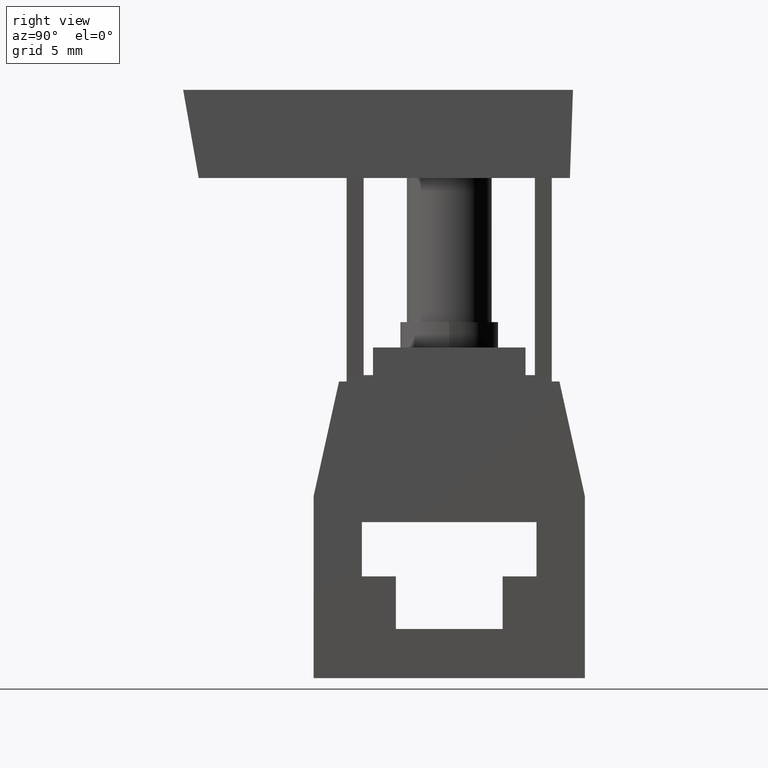
[diagram: clean part render]
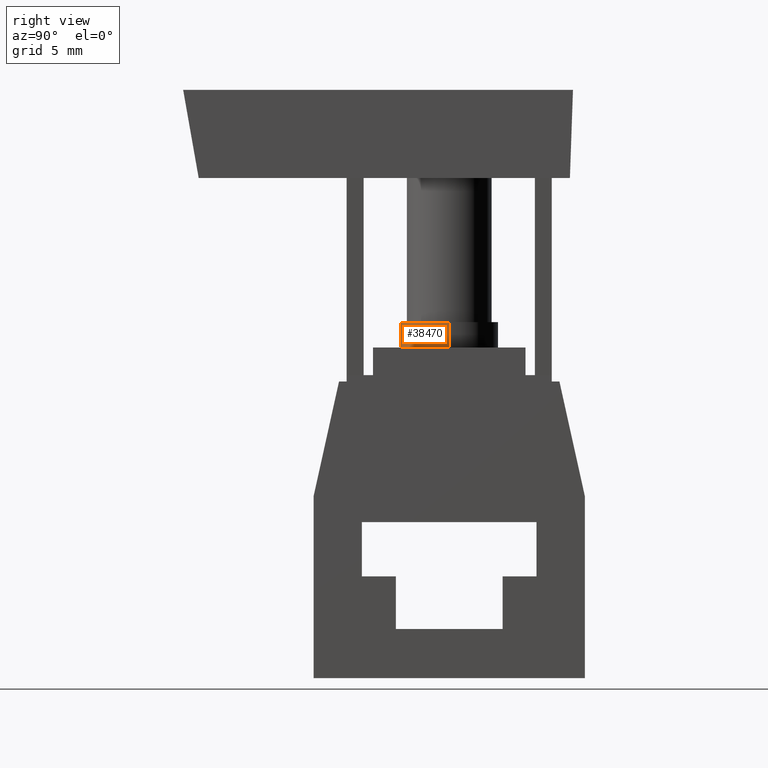
[diagram: same view with one face highlighted and labeled with its STEP entity id]
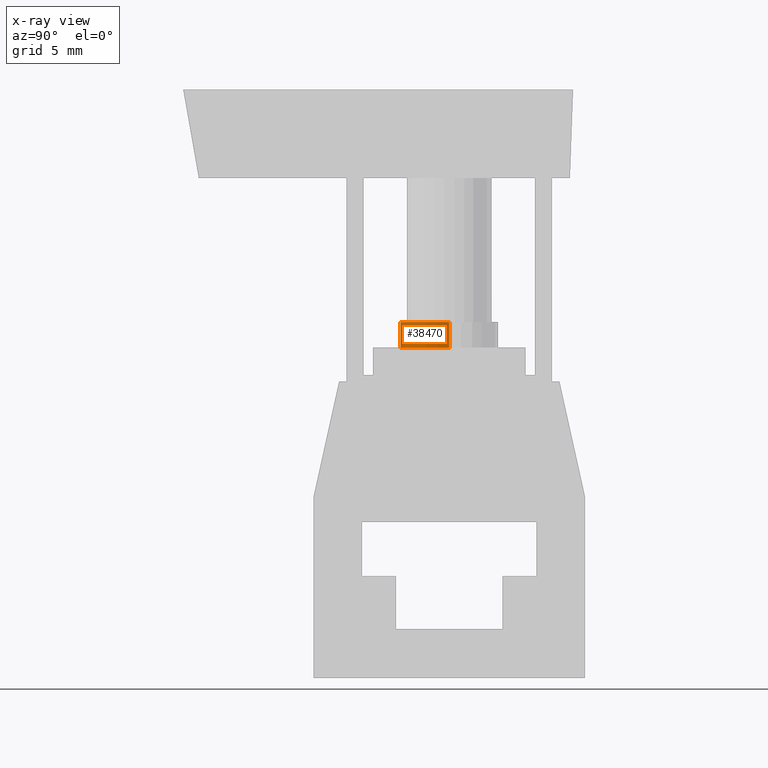
[diagram: x-ray of the same camera — body ghosted, the highlighted face saturated]
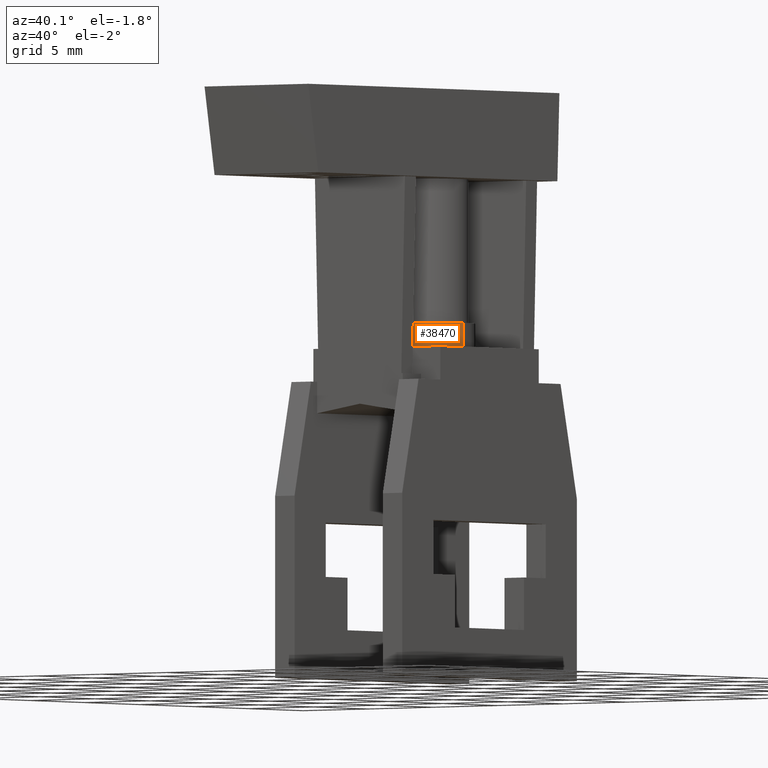
[diagram: same view with one face highlighted and labeled with its STEP entity id]
A machine part, right view. The second image highlights one B-rep face of the part: STEP entity #38470.
The next image is the same camera in x-ray: the body ghosted, the highlighted face saturated — about 0% of this face is hidden behind the body in this view.
A second angle (auxiliary view) of the same face is appended — the face is thin or edge-on in the first view.
In plain terms, the highlighted cylindrical surface (partial cylindrical patch) has radius 2.9 mm, axis along (-0, -0, 1).
Its self-contained STEP definition (entity closure, byte-faithful):
#11310=CARTESIAN_POINT('',(-4.90000000000001,21.,8.00000000000001));
#11320=DIRECTION('',(0.,1.,0.));
#11330=DIRECTION('',(-1.,0.,0.));
#11340=AXIS2_PLACEMENT_3D('',#11310,#11320,#11330);
#11350=CIRCLE('',#11340,2.89999999999999);
#11360=CARTESIAN_POINT('',(-7.8,21.,8.00000000000001));
#11370=VERTEX_POINT('',#11360);
#11380=CARTESIAN_POINT('',(-2.00000000000002,21.,8.00000000000001));
#11390=VERTEX_POINT('',#11380);
#11400=EDGE_CURVE('',#11370,#11390,#11350,.T.);
#11590=CARTESIAN_POINT('',(-7.8,19.5,8.00000000000001));
#11600=DIRECTION('',(0.,1.,0.));
#11610=VECTOR('',#11600,1.);
#11620=LINE('',#11590,#11610);
#11630=CARTESIAN_POINT('',(-7.8,19.5,8.00000000000001));
#11640=VERTEX_POINT('',#11630);
#11650=EDGE_CURVE('',#11640,#11370,#11620,.T.);
#11670=CARTESIAN_POINT('',(-4.90000000000001,19.5,8.00000000000001));
#11680=DIRECTION('',(0.,1.,0.));
#11690=DIRECTION('',(-1.,0.,0.));
#11700=AXIS2_PLACEMENT_3D('',#11670,#11680,#11690);
#11710=CIRCLE('',#11700,2.89999999999999);
#11720=CARTESIAN_POINT('',(-2.00000000000002,19.5,8.00000000000001));
#11730=VERTEX_POINT('',#11720);
#11760=CARTESIAN_POINT('',(-2.00000000000002,19.5,8.00000000000001));
#11770=DIRECTION('',(0.,1.,0.));
#11780=VECTOR('',#11770,1.);
#11790=LINE('',#11760,#11780);
#11800=EDGE_CURVE('',#11730,#11390,#11790,.T.);
#11980=EDGE_CURVE('',#11640,#11730,#11710,.T.);
#38360=CARTESIAN_POINT('',(-4.90000000000001,19.5,8.00000000000001));
#38370=DIRECTION('',(0.,1.,0.));
#38380=DIRECTION('',(-1.,0.,0.));
#38390=AXIS2_PLACEMENT_3D('',#38360,#38370,#38380);
#38400=CYLINDRICAL_SURFACE('',#38390,2.89999999999999);
#38410=ORIENTED_EDGE('',*,*,#11400,.F.);
#38420=ORIENTED_EDGE('',*,*,#11800,.T.);
#38430=ORIENTED_EDGE('',*,*,#11980,.T.);
#38440=ORIENTED_EDGE('',*,*,#11650,.F.);
#38450=EDGE_LOOP('',(#38440,#38430,#38420,#38410));
#38460=FACE_OUTER_BOUND('',#38450,.T.);
#38470=ADVANCED_FACE('',(#38460),#38400,.T.);